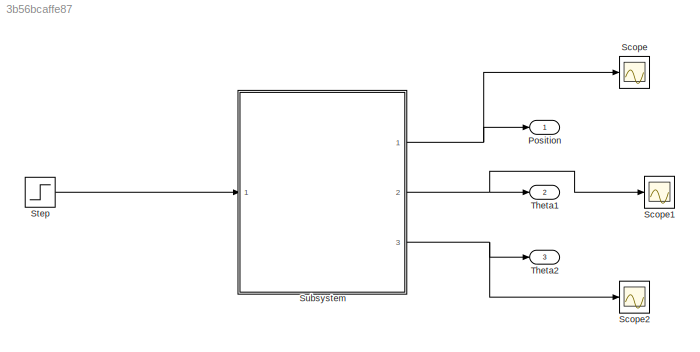
MODEL slx_3b56bcaffe87
KIND model
CONFIG AbsTol = auto
CONFIG EnableMultiTasking = off
CONFIG FixedStep = auto
CONFIG MaxStep = auto
CONFIG MinStep = auto
CONFIG RelTol = 1e-3
CONFIG SampleTimeConstraint = Unconstrained
CONFIG Solver = VariableStepAuto
CONFIG SolverName = VariableStepAuto
CONFIG StartTime = 0.0
CONFIG StopTime = 500
BLOCK [Outport] Position
  IconDisplay = Port number
BLOCK [Scope] Scope
  NumInputPorts = 1
  Ports = [1]
  ScopeSpecificationString = Simulink.scopes.TimeScopeBlockCfg('CurrentConfiguration', extmgr.ConfigurationSet(extmgr.Configuration('Core','General UI',true),extmgr.Configuration('Core','Source UI',true),extmgr.Configuration('Sources','WiredSimulink',true),extmgr.Configuration('Visuals','Time Domain',true,'SerializedDisplays',{struct('MinYLimReal','-1.01626','MaxYLimReal','5.66847','YLabelReal','','MinYLimMag','0.00000','MaxY...<+1331ch>
BLOCK [Scope] Scope1
  NumInputPorts = 1
  Ports = [1]
  ScopeSpecificationString = Simulink.scopes.TimeScopeBlockCfg('CurrentConfiguration', extmgr.ConfigurationSet(extmgr.Configuration('Core','General UI',true),extmgr.Configuration('Core','Source UI',true),extmgr.Configuration('Sources','WiredSimulink',true,'DataLoggingVariableName','ScopeData1'),extmgr.Configuration('Visuals','Time Domain',true,'SerializedDisplays',{struct('MinYLimReal','-0.12318','MaxYLimReal','0.11589','YLab...<+1370ch>
BLOCK [Scope] Scope2
  NumInputPorts = 1
  Ports = [1]
  ScopeSpecificationString = Simulink.scopes.TimeScopeBlockCfg('CurrentConfiguration', extmgr.ConfigurationSet(extmgr.Configuration('Core','General UI',true),extmgr.Configuration('Core','Source UI',true),extmgr.Configuration('Sources','WiredSimulink',true,'DataLoggingVariableName','ScopeData2'),extmgr.Configuration('Visuals','Time Domain',true,'SerializedDisplays',{struct('MinYLimReal','-0.14723','MaxYLimReal','0.14429','YLab...<+1370ch>
BLOCK [Step] Step
  SampleTime = 0
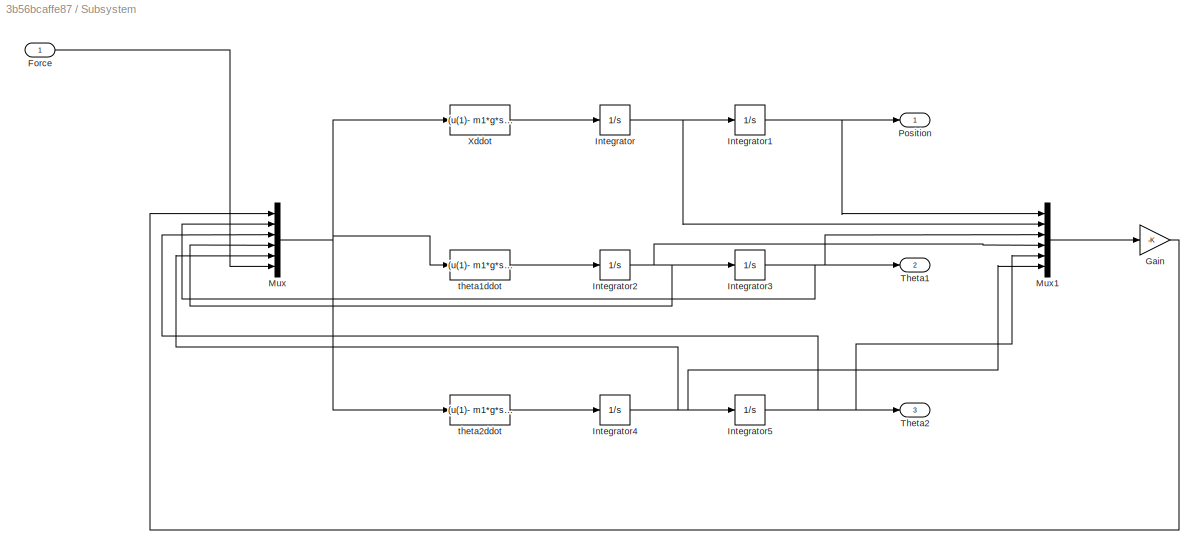
BLOCK [SubSystem] Subsystem
  Ports = [1, 3]
  RequestExecContextInheritance = off
  Variant = off
BLOCK [Inport] Subsystem/Force
  IconDisplay = Port number
BLOCK [Gain] Subsystem/Gain
  Gain = -K
  Multiplication = Matrix(K*u)
  OutDataTypeStr = Inherit: Inherit via internal rule
  ParamDataTypeStr = Inherit: Inherit via internal rule
  SaturateOnIntegerOverflow = off
BLOCK [Integrator] Subsystem/Integrator
  Ports = [1, 1]
BLOCK [Integrator] Subsystem/Integrator1
  Ports = [1, 1]
BLOCK [Integrator] Subsystem/Integrator2
  Ports = [1, 1]
BLOCK [Integrator] Subsystem/Integrator3
  Ports = [1, 1]
BLOCK [Integrator] Subsystem/Integrator4
  Ports = [1, 1]
BLOCK [Integrator] Subsystem/Integrator5
  Ports = [1, 1]
BLOCK [Mux] Subsystem/Mux
  DisplayOption = bar
  Inputs = 6
  Ports = [6, 1]
BLOCK [Mux] Subsystem/Mux1
  DisplayOption = bar
  Inputs = 6
  Ports = [6, 1]
BLOCK [Outport] Subsystem/Position
  IconDisplay = Port number
BLOCK [Outport] Subsystem/Theta1
  IconDisplay = Port number
  Port = 2
BLOCK [Outport] Subsystem/Theta2
  IconDisplay = Port number
  Port = 3
BLOCK [Fcn] Subsystem/Xddot
  Expr = (u(1)- m1*g*sin(u(2))*cos(u(2)) - m1*l1*sin(u(2))*(u(4))^2 - m2*g*sin(u(3))*cos(u(3)) - m2*l2*sin(u(3))*(u(5))^2)/(M + m1*(sin(u(2)))^2 + m2*(sin(u(3)))^2)
BLOCK [Fcn] Subsystem/theta1ddot
  Expr = (u(1)- m1*g*sin(u(2))*cos(u(2)) - m1*l1*sin(u(2))*(u(4))^2 - m2*g*sin(u(3))*cos(u(3)) - m2*l2*sin(u(3))*(u(5))^2)*cos(u(2))/(l1*(M + m1*(sin(u(2)))^2 + m2*(sin(u(3)))^2)) - (g*sin(u(2)))/l1
BLOCK [Fcn] Subsystem/theta2ddot
  Expr = (u(1)- m1*g*sin(u(2))*cos(u(2)) - m1*l1*sin(u(2))*(u(4))^2 - m2*g*sin(u(3))*cos(u(3)) - m2*l2*sin(u(3))*(u(5))^2)*cos(u(3))/(l2*(M + m1*(sin(u(2)))^2 + m2*(sin(u(3)))^2)) - (g*sin(u(3)))/l2
BLOCK [Outport] Theta1
  IconDisplay = Port number
  Port = 2
BLOCK [Outport] Theta2
  IconDisplay = Port number
  Port = 3
LINE Step:1 -> Subsystem:1
LINE Subsystem/Force:1 -> Subsystem/Mux:6
LINE Subsystem/Gain:1 -> Subsystem/Mux:1
NET Subsystem/Integrator1:1 -> Subsystem/Mux1:1, Subsystem/Position:1
NET Subsystem/Integrator2:1 -> Subsystem/Integrator3:1, Subsystem/Mux1:4, Subsystem/Mux:4
NET Subsystem/Integrator3:1 -> Subsystem/Mux1:3, Subsystem/Mux:2, Subsystem/Theta1:1
NET Subsystem/Integrator4:1 -> Subsystem/Integrator5:1, Subsystem/Mux1:6, Subsystem/Mux:5
NET Subsystem/Integrator5:1 -> Subsystem/Mux1:5, Subsystem/Mux:3, Subsystem/Theta2:1
NET Subsystem/Integrator:1 -> Subsystem/Integrator1:1, Subsystem/Mux1:2
LINE Subsystem/Mux1:1 -> Subsystem/Gain:1
NET Subsystem/Mux:1 -> Subsystem/Xddot:1, Subsystem/theta1ddot:1, Subsystem/theta2ddot:1
LINE Subsystem/Xddot:1 -> Subsystem/Integrator:1
LINE Subsystem/theta1ddot:1 -> Subsystem/Integrator2:1
LINE Subsystem/theta2ddot:1 -> Subsystem/Integrator4:1
NET Subsystem:1 -> Position:1, Scope:1
NET Subsystem:2 -> Scope1:1, Theta1:1
NET Subsystem:3 -> Scope2:1, Theta2:1
note: NET lines group one-source signal fan-out (src -> all destinations, sorted); 1:1 wires keep LINE
